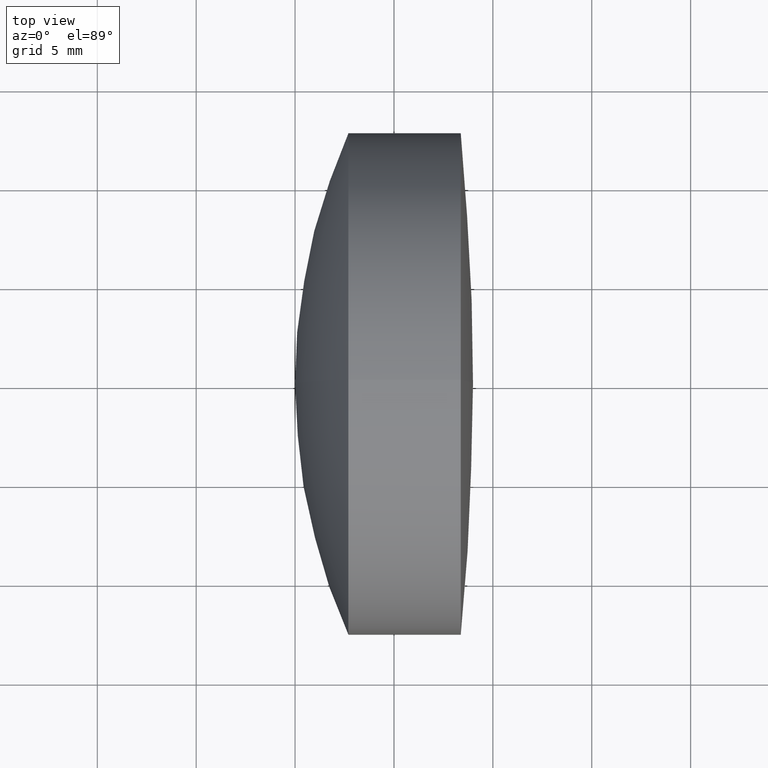
[diagram: clean part render]
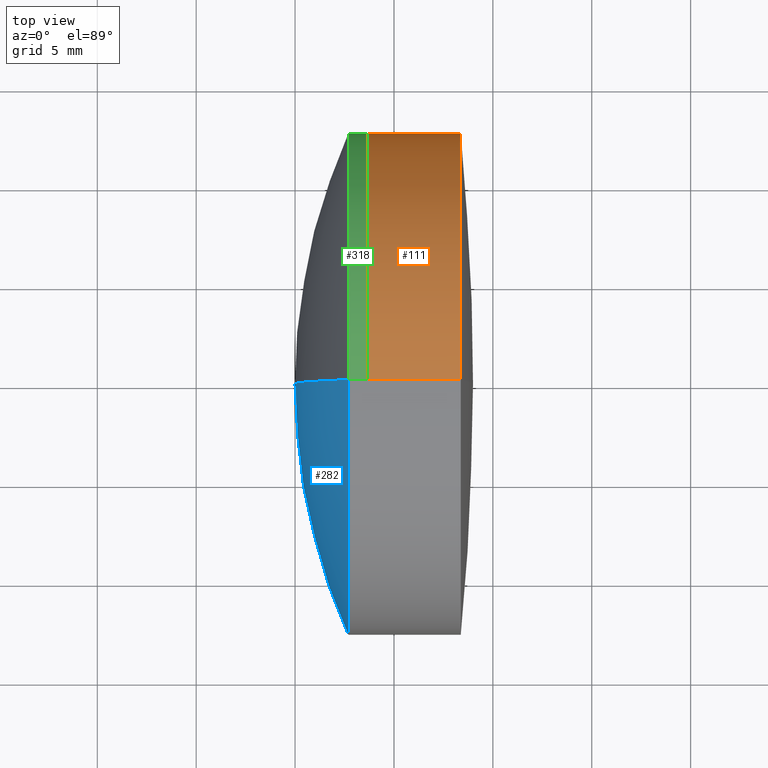
[diagram: same view with three faces highlighted in distinct colors, each labeled with its STEP entity id]
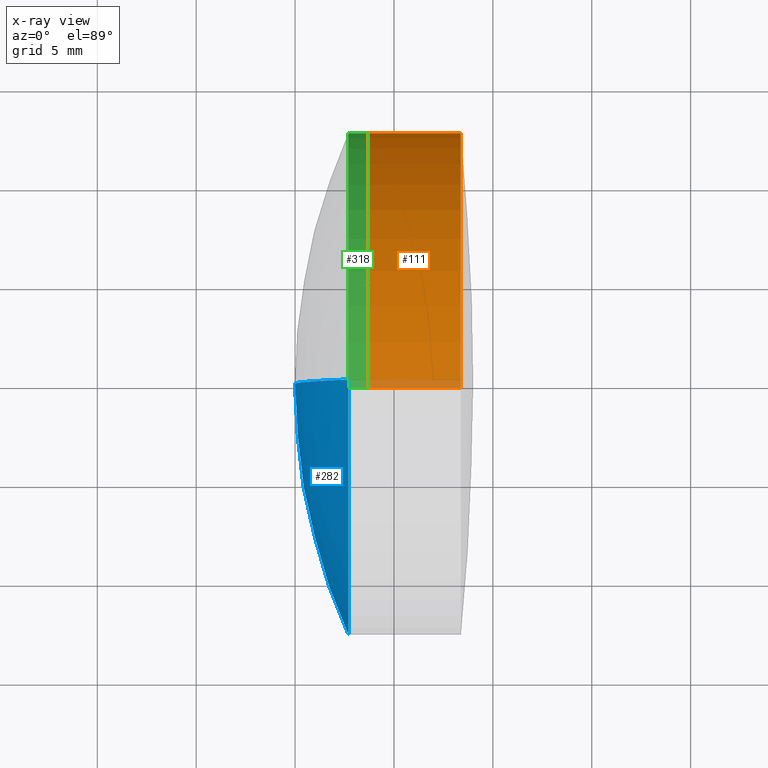
[diagram: x-ray of the same camera — body ghosted, the three highlighted faces saturated]
A machine part, top view with three faces highlighted in distinct colors.
The next image is the same camera in x-ray (body ghosted, the three faces saturated) — at least one of them is partly hidden behind the body in this view.
Their STEP definitions:

[orange] entity #111 — the highlighted cylindrical surface (partial cylindrical patch) has radius 12.7 mm, axis along (-1, -0, -0).
#6 = CARTESIAN_POINT ( 'NONE',  ( 233.6683955093282300, 0.0000000000000000000, 12.70000000000001700 ) ) ;
#29 = CARTESIAN_POINT ( 'NONE',  ( 238.3768828869102400, 0.0000000000000000000, 12.70000000000002100 ) ) ;
#31 = AXIS2_PLACEMENT_3D ( 'NONE', #53, #106, #110 ) ;
#39 = LINE ( 'NONE', #191, #87 ) ;
#53 = CARTESIAN_POINT ( 'NONE',  ( -0.5519199926577972300, 0.0000000000000000000, 0.0000000000000000000 ) ) ;
#61 = EDGE_CURVE ( 'NONE', #121, #166, #128, .T. ) ;
#73 = VECTOR ( 'NONE', #167, 1000.000000000000000 ) ;
#78 = CARTESIAN_POINT ( 'NONE',  ( 233.6683955093282300, 0.0000000000000000000, 0.0000000000000000000 ) ) ;
#87 = VECTOR ( 'NONE', #228, 1000.000000000000000 ) ;
#104 = CYLINDRICAL_SURFACE ( 'NONE', #31, 12.70000000000001900 ) ;
#106 = DIRECTION ( 'NONE',  ( -1.000000000000000000, -0.0000000000000000000, -0.0000000000000000000 ) ) ;
#107 = EDGE_CURVE ( 'NONE', #146, #166, #39, .T. ) ;
#110 = DIRECTION ( 'NONE',  ( 0.0000000000000000000, 0.0000000000000000000, 1.000000000000000000 ) ) ;
#111 = ADVANCED_FACE ( 'NONE', ( #119 ), #104, .T. ) ;
#113 = LINE ( 'NONE', #215, #73 ) ;
#119 = FACE_OUTER_BOUND ( 'NONE', #346, .T. ) ;
#121 = VERTEX_POINT ( 'NONE', #6 ) ;
#128 = CIRCLE ( 'NONE', #145, 12.70000000000001700 ) ;
#131 = EDGE_CURVE ( 'NONE', #310, #121, #113, .T. ) ;
#133 = AXIS2_PLACEMENT_3D ( 'NONE', #274, #256, #304 ) ;
#141 = ORIENTED_EDGE ( 'NONE', *, *, #107, .T. ) ;
#145 = AXIS2_PLACEMENT_3D ( 'NONE', #78, #186, #170 ) ;
#146 = VERTEX_POINT ( 'NONE', #181 ) ;
#166 = VERTEX_POINT ( 'NONE', #278 ) ;
#167 = DIRECTION ( 'NONE',  ( -1.000000000000000000, -0.0000000000000000000, -0.0000000000000000000 ) ) ;
#170 = DIRECTION ( 'NONE',  ( 0.0000000000000000000, 0.0000000000000000000, 1.000000000000000000 ) ) ;
#181 = CARTESIAN_POINT ( 'NONE',  ( 238.3768828869102400, 1.555301434917141200E-015, -12.70000000000002200 ) ) ;
#186 = DIRECTION ( 'NONE',  ( -1.000000000000000000, -0.0000000000000000000, -0.0000000000000000000 ) ) ;
#190 = CIRCLE ( 'NONE', #133, 12.70000000000002100 ) ;
#191 = CARTESIAN_POINT ( 'NONE',  ( -0.5519199926577972300, 1.555301434917140800E-015, -12.70000000000001900 ) ) ;
#204 = ORIENTED_EDGE ( 'NONE', *, *, #131, .F. ) ;
#215 = CARTESIAN_POINT ( 'NONE',  ( -0.5519199926577972300, 0.0000000000000000000, 12.70000000000001900 ) ) ;
#228 = DIRECTION ( 'NONE',  ( -1.000000000000000000, -0.0000000000000000000, -0.0000000000000000000 ) ) ;
#235 = ORIENTED_EDGE ( 'NONE', *, *, #61, .F. ) ;
#256 = DIRECTION ( 'NONE',  ( -1.000000000000000000, -0.0000000000000000000, -0.0000000000000000000 ) ) ;
#274 = CARTESIAN_POINT ( 'NONE',  ( 238.3768828869102400, 0.0000000000000000000, 0.0000000000000000000 ) ) ;
#278 = CARTESIAN_POINT ( 'NONE',  ( 233.6683955093282300, 1.555301434917140400E-015, -12.70000000000002100 ) ) ;
#302 = ORIENTED_EDGE ( 'NONE', *, *, #332, .T. ) ;
#304 = DIRECTION ( 'NONE',  ( 0.0000000000000000000, 0.0000000000000000000, 1.000000000000000000 ) ) ;
#310 = VERTEX_POINT ( 'NONE', #29 ) ;
#332 = EDGE_CURVE ( 'NONE', #310, #146, #190, .T. ) ;
#346 = EDGE_LOOP ( 'NONE', ( #302, #141, #235, #204 ) ) ;

[blue] entity #282 — the highlighted spherical surface has radius 31.2 mm.
#7 = EDGE_CURVE ( 'NONE', #239, #32, #9, .T. ) ;
#9 = CIRCLE ( 'NONE', #97, 12.69999999999999200 ) ;
#13 = EDGE_CURVE ( 'NONE', #32, #209, #19, .T. ) ;
#16 = ORIENTED_EDGE ( 'NONE', *, *, #7, .T. ) ;
#19 = CIRCLE ( 'NONE', #43, 31.19999999999998500 ) ;
#32 = VERTEX_POINT ( 'NONE', #253 ) ;
#34 = DIRECTION ( 'NONE',  ( 0.0000000000000000000, -1.224646799147353200E-016, 1.000000000000000000 ) ) ;
#35 = CARTESIAN_POINT ( 'NONE',  ( 261.1958458084194500, 0.0000000000000000000, -5.967343666751443000E-015 ) ) ;
#43 = AXIS2_PLACEMENT_3D ( 'NONE', #35, #57, #155 ) ;
#52 = DIRECTION ( 'NONE',  ( 0.0000000000000000000, 0.0000000000000000000, 1.000000000000000000 ) ) ;
#57 = DIRECTION ( 'NONE',  ( 0.0000000000000000000, -1.000000000000000000, 0.0000000000000000000 ) ) ;
#82 = DIRECTION ( 'NONE',  ( 0.0000000000000000000, 0.0000000000000000000, 1.000000000000000000 ) ) ;
#90 = DIRECTION ( 'NONE',  ( -1.000000000000000000, -0.0000000000000000000, -0.0000000000000000000 ) ) ;
#97 = AXIS2_PLACEMENT_3D ( 'NONE', #347, #90, #52 ) ;
#108 = CARTESIAN_POINT ( 'NONE',  ( 261.1958458084194500, 0.0000000000000000000, -5.967343666751443000E-015 ) ) ;
#109 = ORIENTED_EDGE ( 'NONE', *, *, #13, .T. ) ;
#155 = DIRECTION ( 'NONE',  ( 0.0000000000000000000, 0.0000000000000000000, -1.000000000000000000 ) ) ;
#178 = AXIS2_PLACEMENT_3D ( 'NONE', #312, #281, #34 ) ;
#183 = CARTESIAN_POINT ( 'NONE',  ( 229.9958458084194600, 0.0000000000000000000, -4.056894660081572400E-015 ) ) ;
#184 = AXIS2_PLACEMENT_3D ( 'NONE', #108, #257, #82 ) ;
#196 = EDGE_CURVE ( 'NONE', #239, #209, #205, .T. ) ;
#205 = CIRCLE ( 'NONE', #178, 31.19999999999998500 ) ;
#209 = VERTEX_POINT ( 'NONE', #183 ) ;
#218 = ORIENTED_EDGE ( 'NONE', *, *, #196, .F. ) ;
#219 = SPHERICAL_SURFACE ( 'NONE', #184, 31.19999999999998500 ) ;
#222 = EDGE_LOOP ( 'NONE', ( #218, #16, #109 ) ) ;
#239 = VERTEX_POINT ( 'NONE', #322 ) ;
#253 = CARTESIAN_POINT ( 'NONE',  ( 232.6976002483854100, 0.0000000000000000000, 12.69999999999999600 ) ) ;
#257 = DIRECTION ( 'NONE',  ( 0.0000000000000000000, 1.000000000000000000, 0.0000000000000000000 ) ) ;
#281 = DIRECTION ( 'NONE',  ( -0.0000000000000000000, 1.000000000000000000, 1.224646799147353200E-016 ) ) ;
#282 = ADVANCED_FACE ( 'NONE', ( #336 ), #219, .T. ) ;
#312 = CARTESIAN_POINT ( 'NONE',  ( 261.1958458084194500, 0.0000000000000000000, -5.967343666751443000E-015 ) ) ;
#322 = CARTESIAN_POINT ( 'NONE',  ( 232.6976002483854100, 1.555301434917138000E-015, -12.69999999999999900 ) ) ;
#336 = FACE_OUTER_BOUND ( 'NONE', #222, .T. ) ;
#347 = CARTESIAN_POINT ( 'NONE',  ( 232.6976002483854100, 0.0000000000000000000, 0.0000000000000000000 ) ) ;

[green] entity #318 — the highlighted cylindrical surface (partial cylindrical patch) has radius 12.7 mm, axis along (-1, -0, -0).
#5 = DIRECTION ( 'NONE',  ( -1.000000000000000000, -0.0000000000000000000, -0.0000000000000000000 ) ) ;
#11 = ORIENTED_EDGE ( 'NONE', *, *, #227, .T. ) ;
#32 = VERTEX_POINT ( 'NONE', #253 ) ;
#60 = DIRECTION ( 'NONE',  ( -1.000000000000000000, -0.0000000000000000000, -0.0000000000000000000 ) ) ;
#70 = EDGE_LOOP ( 'NONE', ( #211, #11, #243, #260 ) ) ;
#76 = AXIS2_PLACEMENT_3D ( 'NONE', #185, #124, #288 ) ;
#112 = DIRECTION ( 'NONE',  ( 0.0000000000000000000, 0.0000000000000000000, 1.000000000000000000 ) ) ;
#120 = CARTESIAN_POINT ( 'NONE',  ( -9.702612178336682500, 0.0000000000000000000, 12.69999999999999200 ) ) ;
#124 = DIRECTION ( 'NONE',  ( -1.000000000000000000, -0.0000000000000000000, -0.0000000000000000000 ) ) ;
#129 = CIRCLE ( 'NONE', #192, 12.69999999999999200 ) ;
#168 = DIRECTION ( 'NONE',  ( -1.000000000000000000, -0.0000000000000000000, -0.0000000000000000000 ) ) ;
#172 = EDGE_CURVE ( 'NONE', #319, #200, #177, .T. ) ;
#177 = CIRCLE ( 'NONE', #187, 12.69999999999999200 ) ;
#185 = CARTESIAN_POINT ( 'NONE',  ( -9.702612178336682500, 0.0000000000000000000, 0.0000000000000000000 ) ) ;
#187 = AXIS2_PLACEMENT_3D ( 'NONE', #314, #5, #344 ) ;
#192 = AXIS2_PLACEMENT_3D ( 'NONE', #324, #297, #112 ) ;
#200 = VERTEX_POINT ( 'NONE', #237 ) ;
#211 = ORIENTED_EDGE ( 'NONE', *, *, #172, .T. ) ;
#221 = EDGE_CURVE ( 'NONE', #32, #239, #129, .T. ) ;
#223 = LINE ( 'NONE', #120, #259 ) ;
#227 = EDGE_CURVE ( 'NONE', #200, #239, #326, .T. ) ;
#237 = CARTESIAN_POINT ( 'NONE',  ( 233.6683955093282300, 1.555301434917137800E-015, -12.69999999999999200 ) ) ;
#239 = VERTEX_POINT ( 'NONE', #322 ) ;
#243 = ORIENTED_EDGE ( 'NONE', *, *, #221, .F. ) ;
#244 = VECTOR ( 'NONE', #60, 1000.000000000000000 ) ;
#253 = CARTESIAN_POINT ( 'NONE',  ( 232.6976002483854100, 0.0000000000000000000, 12.69999999999999600 ) ) ;
#259 = VECTOR ( 'NONE', #168, 1000.000000000000000 ) ;
#260 = ORIENTED_EDGE ( 'NONE', *, *, #334, .F. ) ;
#286 = CARTESIAN_POINT ( 'NONE',  ( 233.6683955093282300, 0.0000000000000000000, 12.69999999999999200 ) ) ;
#288 = DIRECTION ( 'NONE',  ( 0.0000000000000000000, 0.0000000000000000000, 1.000000000000000000 ) ) ;
#292 = FACE_OUTER_BOUND ( 'NONE', #70, .T. ) ;
#297 = DIRECTION ( 'NONE',  ( -1.000000000000000000, -0.0000000000000000000, -0.0000000000000000000 ) ) ;
#314 = CARTESIAN_POINT ( 'NONE',  ( 233.6683955093282300, 0.0000000000000000000, 0.0000000000000000000 ) ) ;
#318 = ADVANCED_FACE ( 'NONE', ( #292 ), #342, .T. ) ;
#319 = VERTEX_POINT ( 'NONE', #286 ) ;
#321 = CARTESIAN_POINT ( 'NONE',  ( -9.702612178336682500, 1.555301434917137800E-015, -12.69999999999999200 ) ) ;
#322 = CARTESIAN_POINT ( 'NONE',  ( 232.6976002483854100, 1.555301434917138000E-015, -12.69999999999999900 ) ) ;
#324 = CARTESIAN_POINT ( 'NONE',  ( 232.6976002483854100, 0.0000000000000000000, 0.0000000000000000000 ) ) ;
#326 = LINE ( 'NONE', #321, #244 ) ;
#334 = EDGE_CURVE ( 'NONE', #319, #32, #223, .T. ) ;
#342 = CYLINDRICAL_SURFACE ( 'NONE', #76, 12.69999999999999200 ) ;
#344 = DIRECTION ( 'NONE',  ( 0.0000000000000000000, 0.0000000000000000000, 1.000000000000000000 ) ) ;